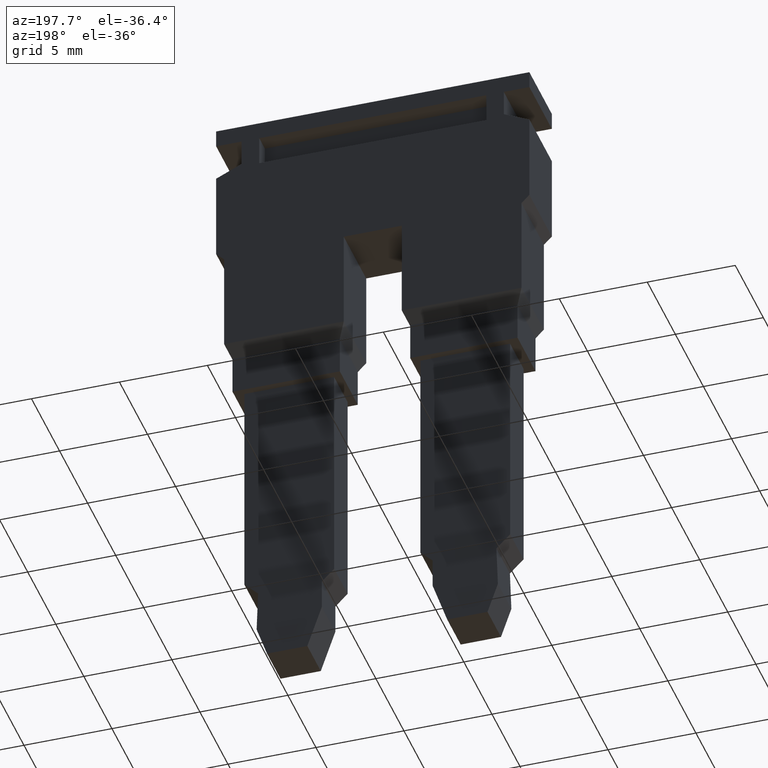
[diagram: clean part render]
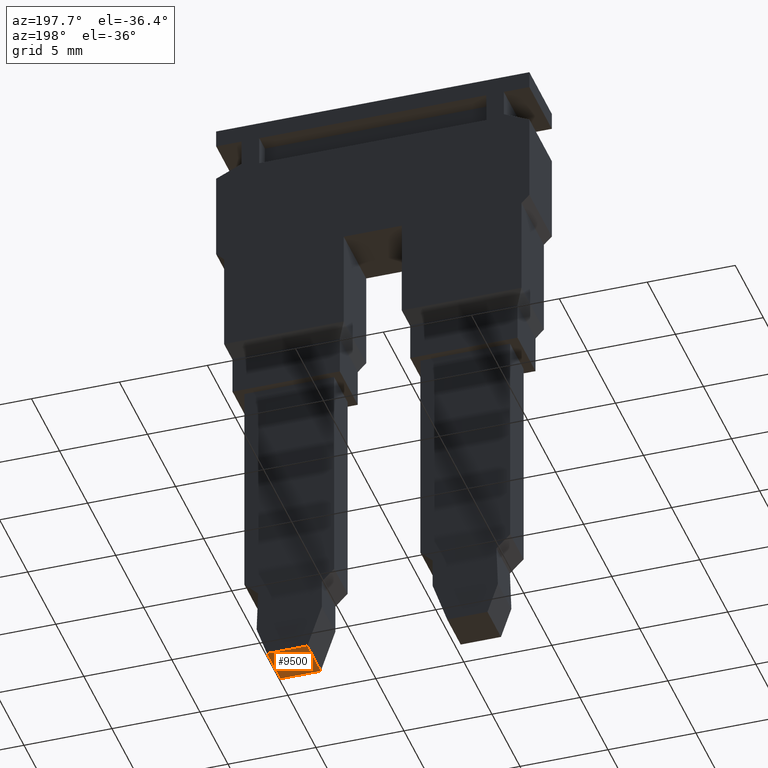
[diagram: same view with one face highlighted and labeled with its STEP entity id]
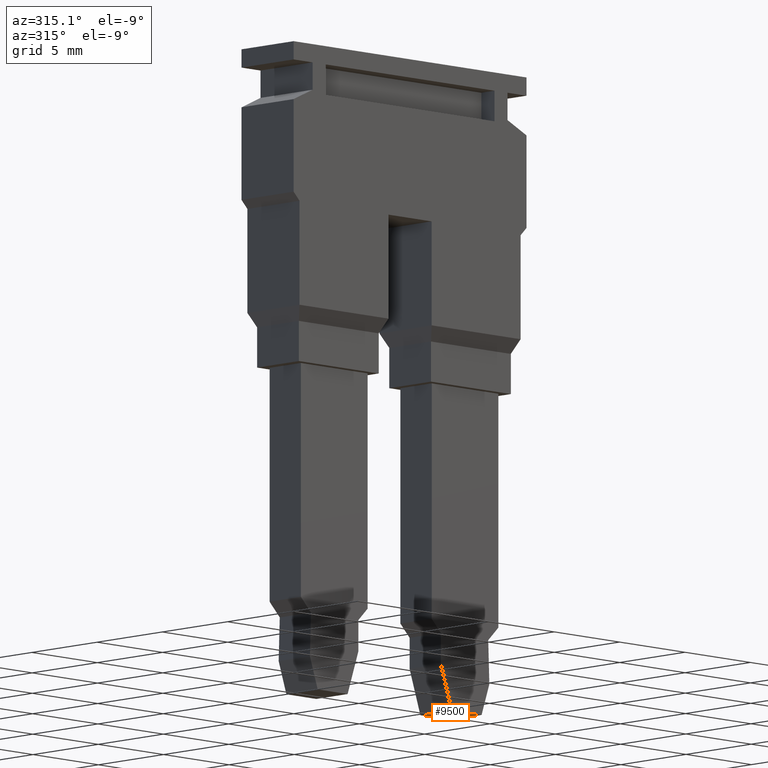
[diagram: same view with one face highlighted and labeled with its STEP entity id]
A machine part, auxiliary view. The second image highlights one B-rep face of the part: STEP entity #9500.
A second angle (auxiliary view) of the same face is appended — the face is thin or edge-on in the first view.
In plain terms, the highlighted planar face has unit normal (-0, 0, 1).
Its self-contained STEP definition (entity closure, byte-faithful):
#7750=CARTESIAN_POINT('',(-5.5999999994634,16.1494740000096,
6.26547487966325));
#7760=VERTEX_POINT('',#7750);
#7790=CARTESIAN_POINT('',(-5.5999999994634,16.1494740000096,
4.33237639386844));
#7800=DIRECTION('',(2.33486982375239E-16,2.67817858921942E-16,1.));
#7810=VECTOR('',#7800,1.);
#7820=LINE('',#7790,#7810);
#7830=CARTESIAN_POINT('',(-5.5999999994634,16.1494740000096,
3.97570635701532));
#7840=VERTEX_POINT('',#7830);
#7850=EDGE_CURVE('',#7840,#7760,#7820,.T.);
#8760=CARTESIAN_POINT('',(-3.19999999946334,16.1494740000516,
6.26547487966325));
#8770=VERTEX_POINT('',#8760);
#8800=CARTESIAN_POINT('',(-2.39999999946337,16.1494740000656,
6.26547487966325));
#8810=DIRECTION('',(-1.,-1.7492973788066E-11,2.33486982380412E-16));
#8820=VECTOR('',#8810,1.);
#8830=LINE('',#8800,#8820);
#8840=EDGE_CURVE('',#8770,#7760,#8830,.T.);
#9270=CARTESIAN_POINT('',(-5.5999999994634,16.1494740000096,
6.05000224011999));
#9280=DIRECTION('',(-1.7492973788066E-11,1.,-2.67817858917857E-16));
#9290=DIRECTION('',(2.33486982375239E-16,2.67817858921942E-16,1.));
#9300=AXIS2_PLACEMENT_3D('',#9270,#9280,#9290);
#9310=PLANE('',#9300);
#9320=ORIENTED_EDGE('',*,*,#7850,.F.);
#9330=ORIENTED_EDGE('',*,*,#8840,.T.);
#9340=CARTESIAN_POINT('',(-3.19999999946334,16.1494740000516,
-0.099999999999997));
#9350=DIRECTION('',(1.11022302460573E-16,2.67817858919799E-16,1.));
#9360=VECTOR('',#9350,1.);
#9370=LINE('',#9340,#9360);
#9380=CARTESIAN_POINT('',(-3.19999999946334,16.1494740000516,
3.97570635701532));
#9390=VERTEX_POINT('',#9380);
#9400=EDGE_CURVE('',#9390,#8770,#9370,.T.);
#9410=ORIENTED_EDGE('',*,*,#9400,.T.);
#9420=CARTESIAN_POINT('',(-2.39999999946337,16.1494740000656,
3.97570635701532));
#9430=DIRECTION('',(-1.,-1.7492973788066E-11,2.33486982380412E-16));
#9440=VECTOR('',#9430,1.);
#9450=LINE('',#9420,#9440);
#9460=EDGE_CURVE('',#9390,#7840,#9450,.T.);
#9470=ORIENTED_EDGE('',*,*,#9460,.F.);
#9480=EDGE_LOOP('',(#9470,#9410,#9330,#9320));
#9490=FACE_OUTER_BOUND('',#9480,.T.);
#9500=ADVANCED_FACE('',(#9490),#9310,.F.);